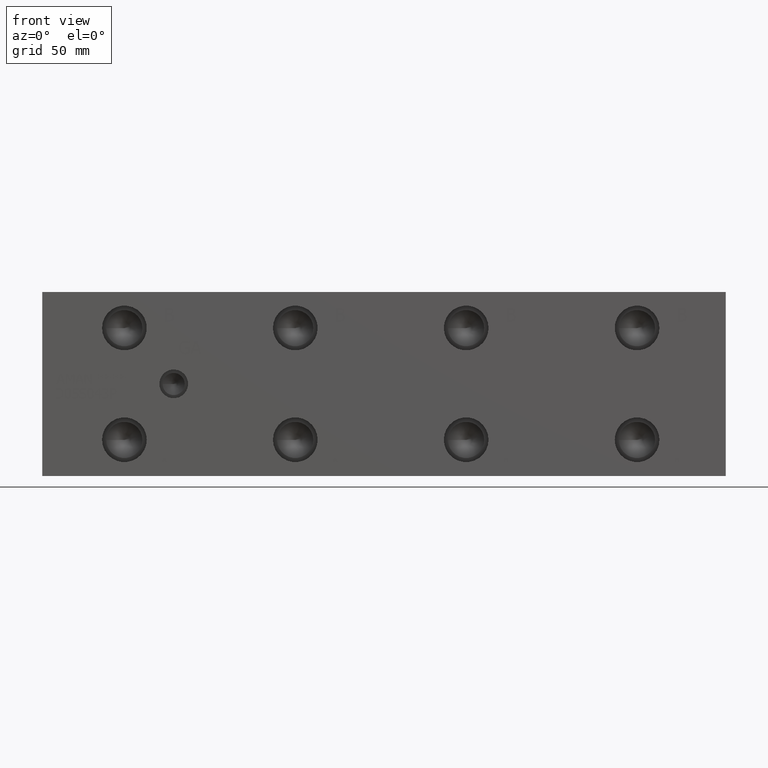
[diagram: clean part render]
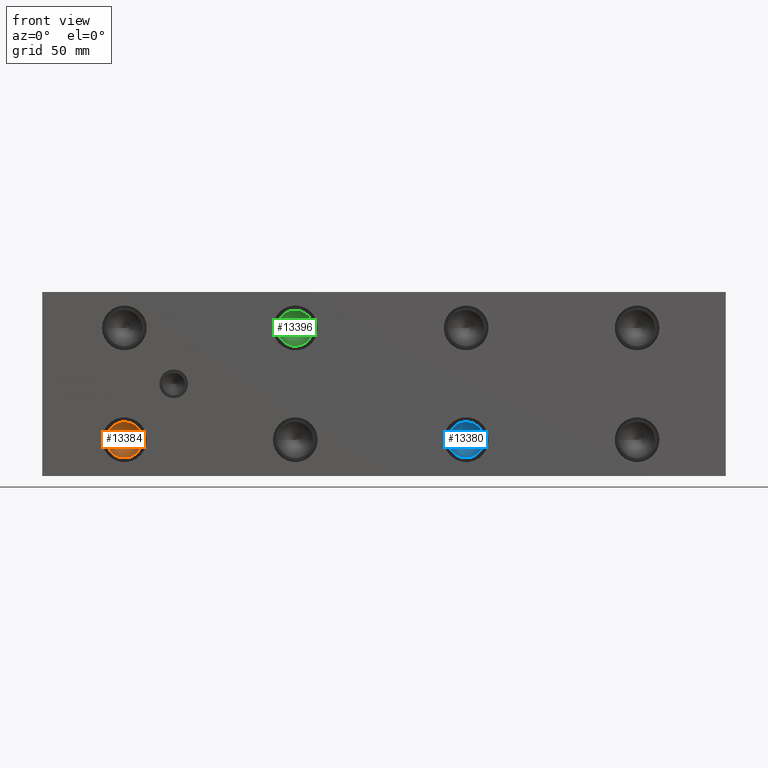
[diagram: same view with three faces highlighted in distinct colors, each labeled with its STEP entity id]
A machine part, front view with three faces highlighted in distinct colors.
Their STEP definitions:

[orange] entity #13384 — the highlighted conical surface has half-angle 60 deg.
#99=CONICAL_SURFACE('',#13983,4.3688,1.0471975511966);
#204=CIRCLE('',#13984,8.7376);
#205=CIRCLE('',#13985,8.7376);
#1632=FACE_OUTER_BOUND('',#2396,.T.);
#2396=EDGE_LOOP('',(#11222,#11223,#11224,#11225));
#3710=LINE('',#22565,#4939);
#4939=VECTOR('',#16361,4.3688);
#6086=VERTEX_POINT('',#22561);
#6087=VERTEX_POINT('',#22562);
#6088=VERTEX_POINT('',#22564);
#7877=EDGE_CURVE('',#6086,#6087,#204,.T.);
#7878=EDGE_CURVE('',#6087,#6088,#3710,.T.);
#7879=EDGE_CURVE('',#6087,#6086,#205,.T.);
#11222=ORIENTED_EDGE('',*,*,#7877,.T.);
#11223=ORIENTED_EDGE('',*,*,#7878,.T.);
#11224=ORIENTED_EDGE('',*,*,#7878,.F.);
#11225=ORIENTED_EDGE('',*,*,#7879,.T.);
#13384=ADVANCED_FACE('',(#1632),#99,.F.);
#13983=AXIS2_PLACEMENT_3D('',#22560,#16357,#16358);
#13984=AXIS2_PLACEMENT_3D('',#22563,#16359,#16360);
#13985=AXIS2_PLACEMENT_3D('',#22566,#16362,#16363);
#16357=DIRECTION('center_axis',(0.,-1.,0.));
#16358=DIRECTION('ref_axis',(1.,0.,0.));
#16359=DIRECTION('center_axis',(0.,-1.,0.));
#16360=DIRECTION('ref_axis',(1.,0.,0.));
#16361=DIRECTION('',(0.866025403784439,0.5,1.06057523872491E-16));
#16362=DIRECTION('center_axis',(0.,-1.,0.));
#16363=DIRECTION('ref_axis',(1.,0.,0.));
#22560=CARTESIAN_POINT('Origin',(39.6748,18.3937978560356,17.4498));
#22561=CARTESIAN_POINT('',(48.4124,15.87147,17.4498));
#22562=CARTESIAN_POINT('',(30.9372,15.87147,17.4498));
#22563=CARTESIAN_POINT('Origin',(39.6748,15.87147,17.4498));
#22564=CARTESIAN_POINT('',(39.6748,20.9161257120713,17.4498));
#22565=CARTESIAN_POINT('',(35.306,18.3937978560356,17.4498));
#22566=CARTESIAN_POINT('Origin',(39.6748,15.87147,17.4498));

[blue] entity #13380 — the highlighted conical surface has half-angle 60 deg.
#98=CONICAL_SURFACE('',#13974,4.3688,1.0471975511966);
#199=CIRCLE('',#13975,8.7376);
#200=CIRCLE('',#13976,8.7376);
#1628=FACE_OUTER_BOUND('',#2391,.T.);
#2391=EDGE_LOOP('',(#11204,#11205,#11206,#11207));
#3707=LINE('',#22547,#4936);
#4936=VECTOR('',#16340,4.3688);
#6080=VERTEX_POINT('',#22543);
#6081=VERTEX_POINT('',#22544);
#6082=VERTEX_POINT('',#22546);
#7869=EDGE_CURVE('',#6080,#6081,#199,.T.);
#7870=EDGE_CURVE('',#6081,#6082,#3707,.T.);
#7871=EDGE_CURVE('',#6081,#6080,#200,.T.);
#11204=ORIENTED_EDGE('',*,*,#7869,.T.);
#11205=ORIENTED_EDGE('',*,*,#7870,.T.);
#11206=ORIENTED_EDGE('',*,*,#7870,.F.);
#11207=ORIENTED_EDGE('',*,*,#7871,.T.);
#13380=ADVANCED_FACE('',(#1628),#98,.F.);
#13974=AXIS2_PLACEMENT_3D('',#22542,#16336,#16337);
#13975=AXIS2_PLACEMENT_3D('',#22545,#16338,#16339);
#13976=AXIS2_PLACEMENT_3D('',#22548,#16341,#16342);
#16336=DIRECTION('center_axis',(0.,-1.,0.));
#16337=DIRECTION('ref_axis',(1.,0.,0.));
#16338=DIRECTION('center_axis',(0.,-1.,0.));
#16339=DIRECTION('ref_axis',(1.,0.,0.));
#16340=DIRECTION('',(0.866025403784439,0.5,1.06057523872491E-16));
#16341=DIRECTION('center_axis',(0.,-1.,0.));
#16342=DIRECTION('ref_axis',(1.,0.,0.));
#22542=CARTESIAN_POINT('Origin',(204.7748,18.3937978560356,17.4498));
#22543=CARTESIAN_POINT('',(213.5124,15.87147,17.4498));
#22544=CARTESIAN_POINT('',(196.0372,15.87147,17.4498));
#22545=CARTESIAN_POINT('Origin',(204.7748,15.87147,17.4498));
#22546=CARTESIAN_POINT('',(204.7748,20.9161257120713,17.4498));
#22547=CARTESIAN_POINT('',(200.406,18.3937978560356,17.4498));
#22548=CARTESIAN_POINT('Origin',(204.7748,15.87147,17.4498));

[green] entity #13396 — the highlighted conical surface has half-angle 60 deg.
#102=CONICAL_SURFACE('',#14010,4.3688,1.0471975511966);
#219=CIRCLE('',#14011,8.7376);
#220=CIRCLE('',#14012,8.7376);
#1644=FACE_OUTER_BOUND('',#2411,.T.);
#2411=EDGE_LOOP('',(#11276,#11277,#11278,#11279));
#3719=LINE('',#22619,#4948);
#4948=VECTOR('',#16424,4.3688);
#6104=VERTEX_POINT('',#22615);
#6105=VERTEX_POINT('',#22616);
#6106=VERTEX_POINT('',#22618);
#7901=EDGE_CURVE('',#6104,#6105,#219,.T.);
#7902=EDGE_CURVE('',#6105,#6106,#3719,.T.);
#7903=EDGE_CURVE('',#6105,#6104,#220,.T.);
#11276=ORIENTED_EDGE('',*,*,#7901,.T.);
#11277=ORIENTED_EDGE('',*,*,#7902,.T.);
#11278=ORIENTED_EDGE('',*,*,#7902,.F.);
#11279=ORIENTED_EDGE('',*,*,#7903,.T.);
#13396=ADVANCED_FACE('',(#1644),#102,.F.);
#14010=AXIS2_PLACEMENT_3D('',#22614,#16420,#16421);
#14011=AXIS2_PLACEMENT_3D('',#22617,#16422,#16423);
#14012=AXIS2_PLACEMENT_3D('',#22620,#16425,#16426);
#16420=DIRECTION('center_axis',(0.,-1.,0.));
#16421=DIRECTION('ref_axis',(1.,0.,0.));
#16422=DIRECTION('center_axis',(0.,-1.,0.));
#16423=DIRECTION('ref_axis',(1.,0.,0.));
#16424=DIRECTION('',(0.866025403784439,0.5,1.06057523872491E-16));
#16425=DIRECTION('center_axis',(0.,-1.,0.));
#16426=DIRECTION('ref_axis',(1.,0.,0.));
#22614=CARTESIAN_POINT('Origin',(122.2248,18.3937978560356,71.4502));
#22615=CARTESIAN_POINT('',(130.9624,15.87147,71.4502));
#22616=CARTESIAN_POINT('',(113.4872,15.87147,71.4502));
#22617=CARTESIAN_POINT('Origin',(122.2248,15.87147,71.4502));
#22618=CARTESIAN_POINT('',(122.2248,20.9161257120713,71.4502));
#22619=CARTESIAN_POINT('',(117.856,18.3937978560356,71.4502));
#22620=CARTESIAN_POINT('Origin',(122.2248,15.87147,71.4502));